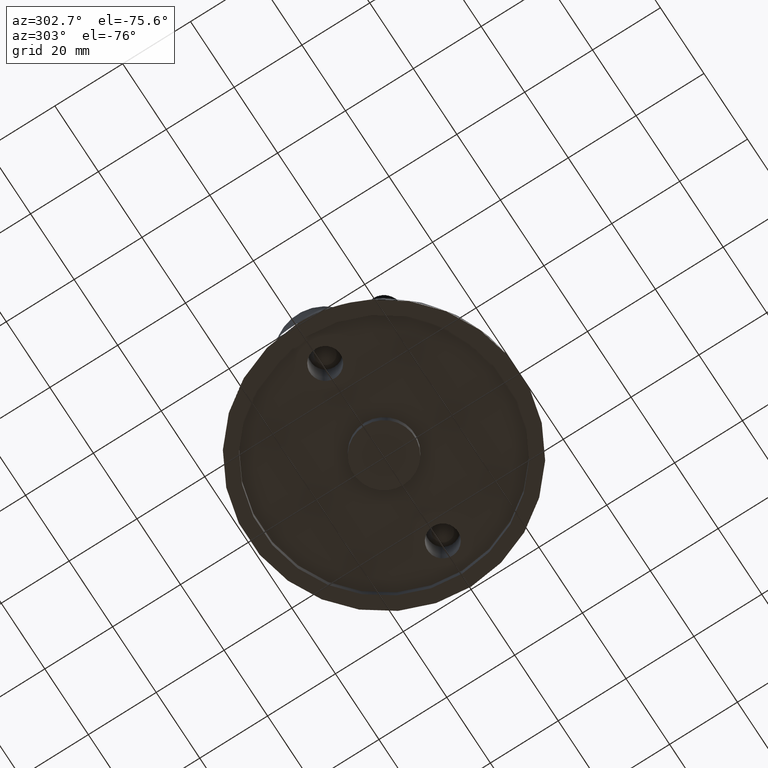
[diagram: clean part render]
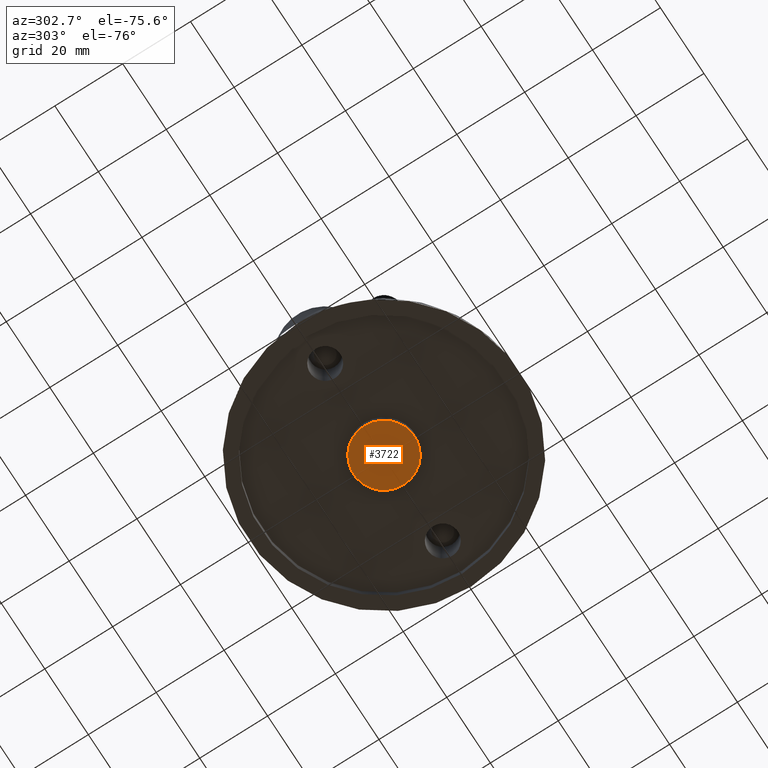
[diagram: same view with one face highlighted and labeled with its STEP entity id]
A machine part, auxiliary view. The second image highlights one B-rep face of the part: STEP entity #3722.
In plain terms, the highlighted planar face has unit normal (0, 0, 1).
Its self-contained STEP definition (entity closure, byte-faithful):
#3683=CARTESIAN_POINT('',(9.0,1.102182E-015,0.000002656498295));
#3684=VERTEX_POINT('',#3683);
#3694=CARTESIAN_POINT('',(-9.0,0.0,0.000002656498295));
#3695=VERTEX_POINT('',#3694);
#3696=CARTESIAN_POINT('',(0.0,0.0,0.000002656498295));
#3697=DIRECTION('',(0.0,0.0,1.0));
#3698=DIRECTION('',(1.0,0.0,0.0));
#3699=AXIS2_PLACEMENT_3D('',#3696,#3697,#3698);
#3700=CIRCLE('',#3699,9.0);
#3701=EDGE_CURVE('',#3684,#3695,#3700,.T.);
#3703=CARTESIAN_POINT('',(0.0,0.0,0.000002656498295));
#3704=DIRECTION('',(0.0,0.0,1.0));
#3705=DIRECTION('',(1.0,0.0,0.0));
#3706=AXIS2_PLACEMENT_3D('',#3703,#3704,#3705);
#3707=CIRCLE('',#3706,9.0);
#3708=EDGE_CURVE('',#3695,#3684,#3707,.T.);
#3713=CARTESIAN_POINT('',(-9.900000000000000,-9.900000000000000,0.000002656498295));
#3714=DIRECTION('',(0.0,0.0,1.0));
#3715=DIRECTION('',(1.0,0.0,0.0));
#3716=AXIS2_PLACEMENT_3D('',#3713,#3714,#3715);
#3717=PLANE('',#3716);
#3718=ORIENTED_EDGE('',*,*,#3708,.F.);
#3719=ORIENTED_EDGE('',*,*,#3701,.F.);
#3720=EDGE_LOOP('',(#3718,#3719));
#3721=FACE_OUTER_BOUND('',#3720,.T.);
#3722=ADVANCED_FACE('',(#3721),#3717,.F.);